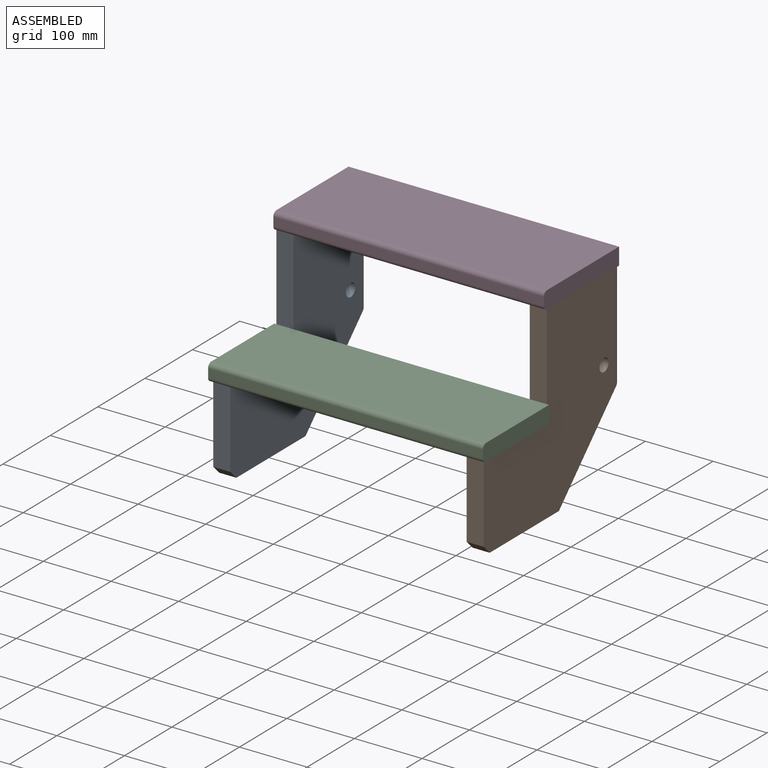
[diagram: assembled view]
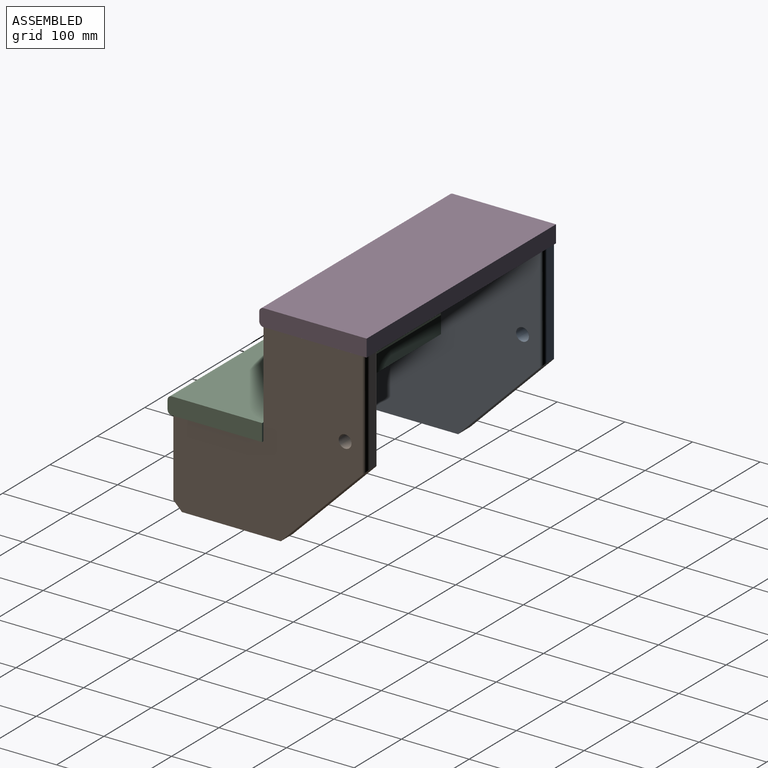
[diagram: assembled view, second angle]
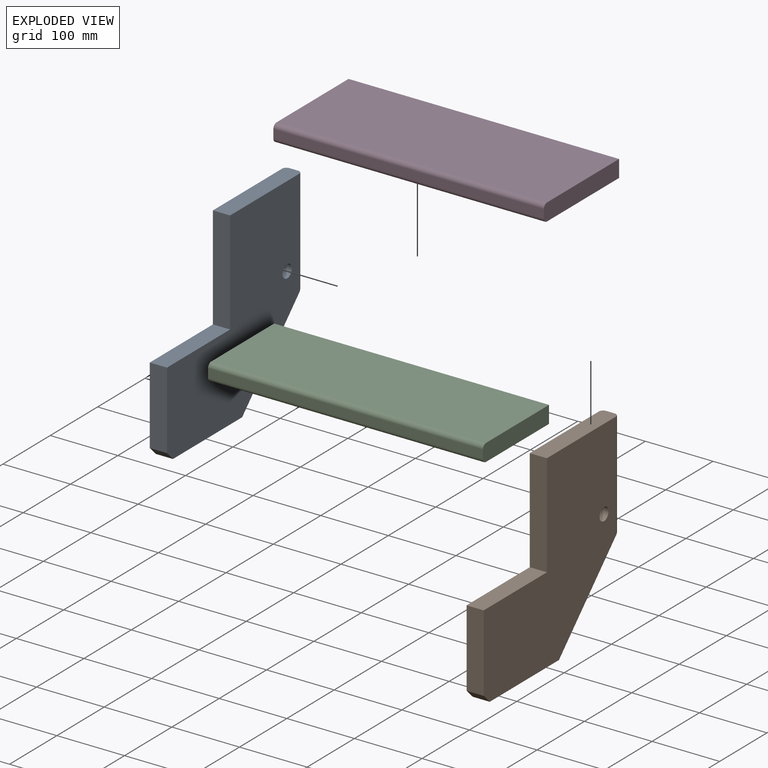
[diagram: exploded view]
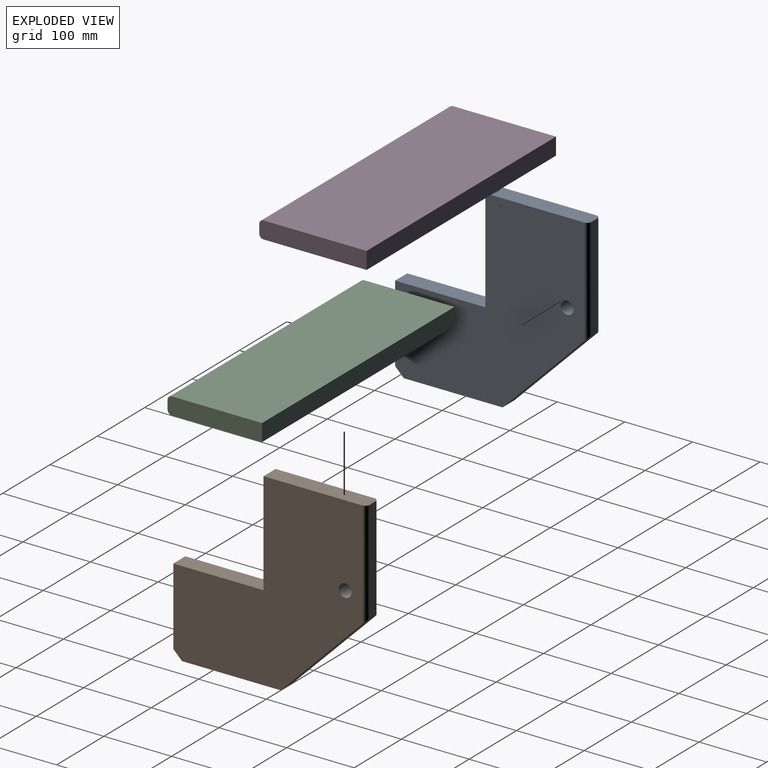
[diagram: exploded view, second angle]
ASSEMBLY  parts=4 mates=2
PART A: 13 faces, bbox 25.4x285.8x279.4 mm
  f0: plane 152.4x25.4mm, normal (0,-1,0), area 3871mm2, adj f1,f7,f8,f9
  f1: plane 133.35x25.4mm, normal (0,0,1), area 3387.1mm2, adj f0,f2,f8,f9
  f2: plane 114.3x25.4mm, normal (0,-1,0), area 2903.2mm2, adj f1,f8,f9,f10
  f3: plane 146.05x25.4mm, normal (0,0,-1), area 3709.7mm2, adj f4,f8,f9,f10
  f4: plane 127x127mm, normal (0,0.71,-0.71), area 4537.5mm2, adj f3,f5,f8,f9,f11,f12
  f5: plane 152.4x12.7mm, normal (0,1,0), area 1935.5mm2, adj f4,f7,f11,f12
  f6: cylinder r=9.53mm len=25.4mm, axis (1,0,0), area 1520.1mm2, adj f8,f9
  f7: plane 152.4x25.4mm, normal (0,0,1), area 3853.7mm2, adj f0,f5,f8,f9,f11,f12
  f8: plane 279.4x279.4mm, normal (-1,0,0), area 50097.9mm2, adj f0,f1,f2,f3,f4,f6,f7,f10
  f9: plane 279.4x279.4mm, normal (1,0,0), area 50097.9mm2, adj f0,f1,f2,f3,f4,f6,f7,f10
  f10: plane 25.4x12.7mm, normal (0,-0.71,-0.71), area 456.2mm2, adj f2,f3,f8,f9
  f11: cylinder r=6.35mm len=158.75mm, axis (0,0,1), area 1543.1mm2, adj f4,f5,f7,f9
  f12: cylinder r=6.35mm len=158.75mm, axis (0,0,-1), area 1543.1mm2, adj f4,f5,f7,f8
PART B: same geometry as A
PART C: 8 faces, bbox 406.4x25.4x139.7 mm
  f0: plane 139.7x25.4mm, normal (-1,0,0), area 3531.1mm2, adj f1,f3,f4,f5,f6,f7
  f1: plane 406.4x12.7mm, normal (0,0,-1), area 5161.3mm2, adj f0,f2,f6,f7
  f2: plane 139.7x25.4mm, normal (1,0,0), area 3531.1mm2, adj f1,f3,f4,f5,f6,f7
  f3: plane 406.4x25.4mm, normal (0,0,1), area 10322.6mm2, adj f0,f2,f4,f5
  f4: plane 406.4x133.35mm, normal (0,-1,0), area 54193.4mm2, adj f0,f2,f3,f7
  f5: plane 406.4x133.35mm, normal (0,1,0), area 54193.4mm2, adj f0,f2,f3,f6
  f6: cylinder r=6.35mm len=406.4mm, axis (1,0,0), area 4053.7mm2, adj f0,f1,f2,f5
  f7: cylinder r=6.35mm len=406.4mm, axis (-1,0,0), area 4053.7mm2, adj f0,f1,f2,f4
PART D: 8 faces, bbox 400.1x158.8x25.4 mm
  f0: plane 158.75x25.4mm, normal (-1,0,0), area 4014.9mm2, adj f1,f3,f4,f5,f6,f7
  f1: plane 400.05x12.7mm, normal (0,-1,0), area 5080.6mm2, adj f0,f2,f6,f7
  f2: plane 158.75x25.4mm, normal (1,0,0), area 4014.9mm2, adj f1,f3,f4,f5,f6,f7
  f3: plane 400.05x25.4mm, normal (0,1,0), area 10161.3mm2, adj f0,f2,f4,f5
  f4: plane 400.05x152.4mm, normal (0,0,-1), area 60967.6mm2, adj f0,f2,f3,f7
  f5: plane 400.05x152.4mm, normal (0,0,1), area 60967.6mm2, adj f0,f2,f3,f6
  f6: cylinder r=6.35mm len=400.05mm, axis (1,0,0), area 3990.3mm2, adj f0,f1,f2,f5
  f7: cylinder r=6.35mm len=400.05mm, axis (-1,0,0), area 3990.3mm2, adj f0,f1,f2,f4
PLACE A t=(-389.86,-259.42,42.88)mm
PLACE B t=(-15.21,-259.42,42.88)mm
PLACE C rot(axis=(0,-0.71,-0.71),180deg) t=(-418.43,-1578.24,195.28)mm
PLACE D t=(-15.21,-265.77,42.88)mm
MATE fastened D.f4 <-> B.f7  axis (0,0,1) through (-15.21,-714.64,322.28)mm
MATE fastened C.f4 <-> B.f1  axis (0,0,1) through (-12.03,-714.64,169.88)mm
